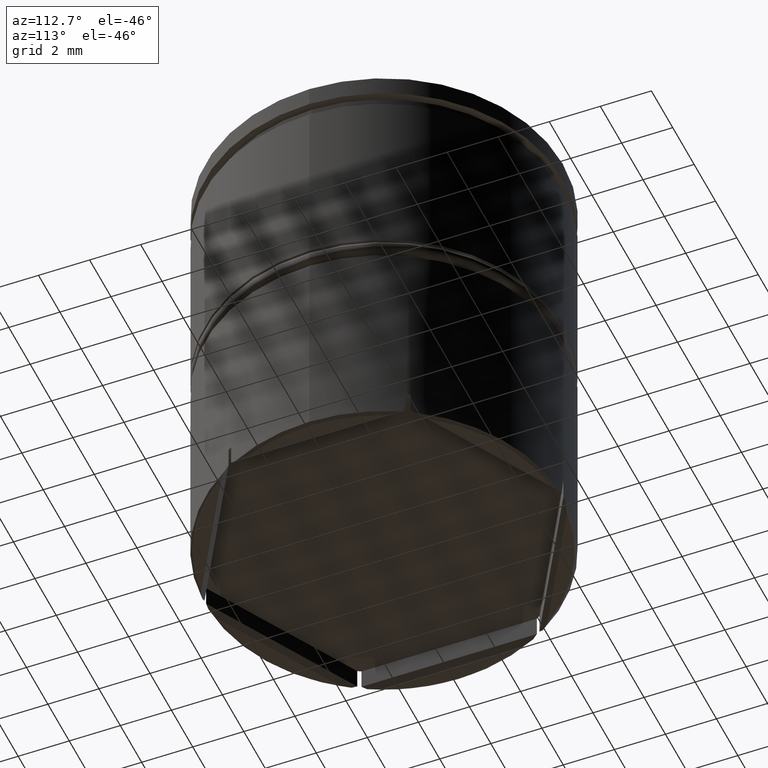
[diagram: clean part render]
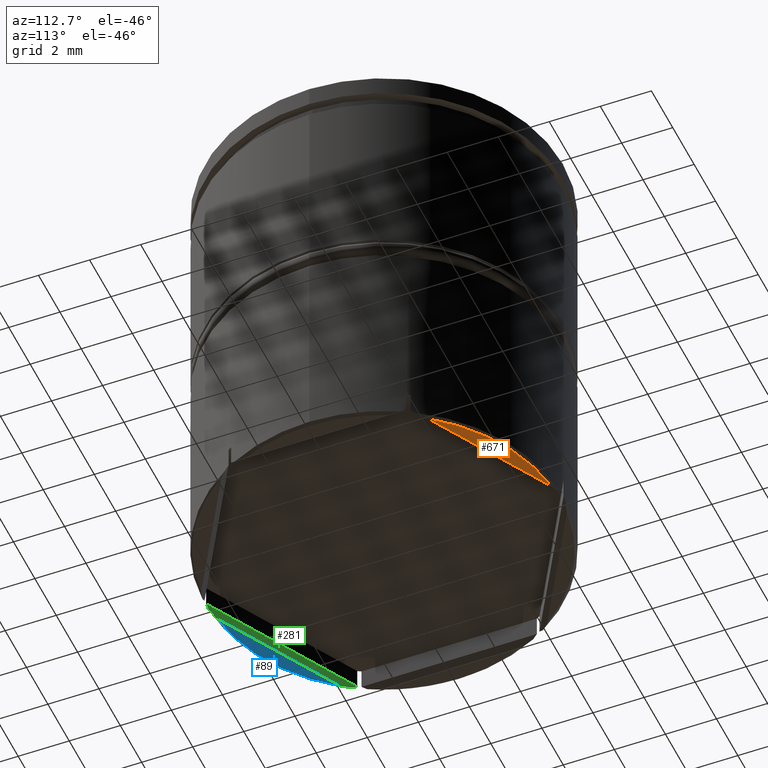
[diagram: same view with three faces highlighted in distinct colors, each labeled with its STEP entity id]
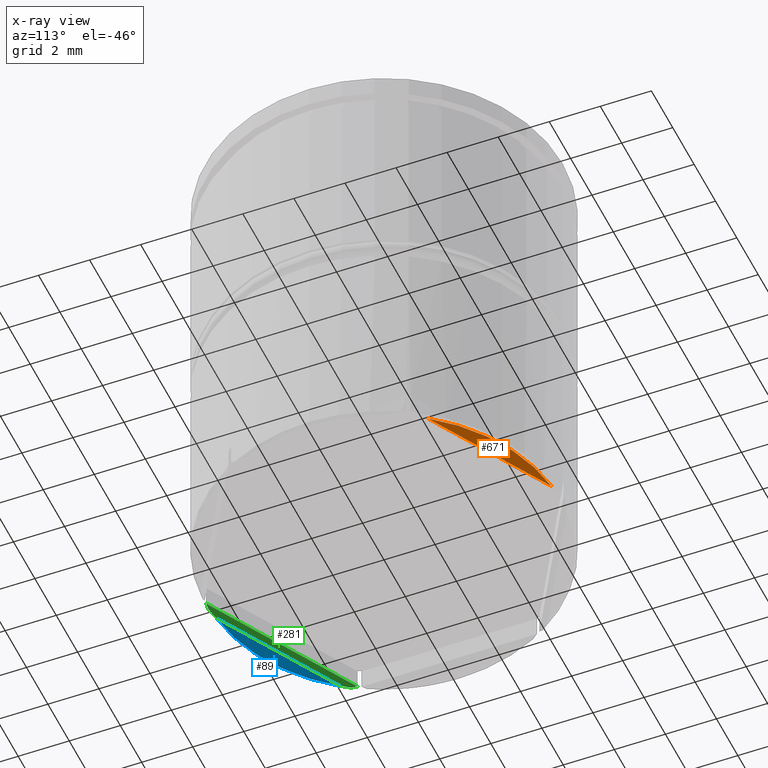
[diagram: x-ray of the same camera — body ghosted, the three highlighted faces saturated]
A machine part, auxiliary view with three faces highlighted in distinct colors.
The next image is the same camera in x-ray (body ghosted, the three faces saturated) — at least one of them is partly hidden behind the body in this view.
Their STEP definitions:

[orange] entity #671 — the highlighted planar face has unit normal (0, 0, -1).
#42 = DIRECTION ( 'NONE',  ( 0.000000000000000000, 0.000000000000000000, -1.000000000000000000 ) ) ;
#140 = DIRECTION ( 'NONE',  ( -1.000000000000000000, 0.000000000000000000, -0.000000000000000000 ) ) ;
#224 = EDGE_CURVE ( 'NONE', #723, #1312, #1499, .T. ) ;
#289 = CARTESIAN_POINT ( 'NONE',  ( 0.000000000000000000, 0.000000000000000000, -17.50000000000000000 ) ) ;
#294 = PLANE ( 'NONE',  #981 ) ;
#309 = CARTESIAN_POINT ( 'NONE',  ( 5.587211521390792690, 4.048835315894937281, -17.50000000000000000 ) ) ;
#447 = EDGE_CURVE ( 'NONE', #1312, #723, #472, .T. ) ;
#472 = LINE ( 'NONE', #481, #1107 ) ;
#481 = CARTESIAN_POINT ( 'NONE',  ( 0.3571519912462124413, 7.068411593501677359, -17.50000000000000000 ) ) ;
#505 = DIRECTION ( 'NONE',  ( 0.000000000000000000, 0.000000000000000000, -1.000000000000000000 ) ) ;
#598 = CARTESIAN_POINT ( 'NONE',  ( 0.7127884786092115732, 6.863084771788996896, -17.50000000000000000 ) ) ;
#606 = ORIENTED_EDGE ( 'NONE', *, *, #447, .T. ) ;
#636 = FACE_OUTER_BOUND ( 'NONE', #1170, .T. ) ;
#671 = ADVANCED_FACE ( 'NONE', ( #636 ), #294, .T. ) ;
#723 = VERTEX_POINT ( 'NONE', #598 ) ;
#774 = AXIS2_PLACEMENT_3D ( 'NONE', #289, #42, #1160 ) ;
#796 = CARTESIAN_POINT ( 'NONE',  ( 0.000000000000000000, 7.000000000000000888, -17.50000000000000000 ) ) ;
#976 = DIRECTION ( 'NONE',  ( -0.8660254037844385966, 0.5000000000000002220, 0.000000000000000000 ) ) ;
#981 = AXIS2_PLACEMENT_3D ( 'NONE', #796, #505, #140 ) ;
#1107 = VECTOR ( 'NONE', #976, 999.9999999999998863 ) ;
#1160 = DIRECTION ( 'NONE',  ( -1.000000000000000000, 0.000000000000000000, 0.000000000000000000 ) ) ;
#1170 = EDGE_LOOP ( 'NONE', ( #1527, #606 ) ) ;
#1312 = VERTEX_POINT ( 'NONE', #309 ) ;
#1499 = CIRCLE ( 'NONE', #774, 6.900000000000003908 ) ;
#1527 = ORIENTED_EDGE ( 'NONE', *, *, #224, .T. ) ;

[blue] entity #89 — the highlighted planar face has unit normal (0, 0, -1).
#89 = ADVANCED_FACE ( 'NONE', ( #1458 ), #836, .T. ) ;
#205 = DIRECTION ( 'NONE',  ( -1.000000000000000000, 0.000000000000000000, 0.000000000000000000 ) ) ;
#210 = CARTESIAN_POINT ( 'NONE',  ( -5.587211521390797131, -4.048835315894931064, -17.50000000000000000 ) ) ;
#211 = ORIENTED_EDGE ( 'NONE', *, *, #1141, .T. ) ;
#332 = EDGE_CURVE ( 'NONE', #1098, #1470, #984, .T. ) ;
#587 = CARTESIAN_POINT ( 'NONE',  ( 0.000000000000000000, 0.000000000000000000, -17.50000000000000000 ) ) ;
#637 = CARTESIAN_POINT ( 'NONE',  ( -0.3571519912462118862, -7.068411593501673806, -17.50000000000000000 ) ) ;
#666 = AXIS2_PLACEMENT_3D ( 'NONE', #587, #1071, #205 ) ;
#708 = EDGE_LOOP ( 'NONE', ( #1547, #211 ) ) ;
#754 = DIRECTION ( 'NONE',  ( 0.8660254037844385966, -0.5000000000000001110, 0.000000000000000000 ) ) ;
#836 = PLANE ( 'NONE',  #1217 ) ;
#855 = CARTESIAN_POINT ( 'NONE',  ( -0.7127884786092052449, -6.863084771788998673, -17.50000000000000000 ) ) ;
#898 = LINE ( 'NONE', #637, #1324 ) ;
#984 = CIRCLE ( 'NONE', #666, 6.900000000000003908 ) ;
#1009 = DIRECTION ( 'NONE',  ( 0.000000000000000000, 0.000000000000000000, -1.000000000000000000 ) ) ;
#1071 = DIRECTION ( 'NONE',  ( 0.000000000000000000, 0.000000000000000000, -1.000000000000000000 ) ) ;
#1096 = DIRECTION ( 'NONE',  ( -1.000000000000000000, 0.000000000000000000, -0.000000000000000000 ) ) ;
#1098 = VERTEX_POINT ( 'NONE', #855 ) ;
#1141 = EDGE_CURVE ( 'NONE', #1470, #1098, #898, .T. ) ;
#1212 = CARTESIAN_POINT ( 'NONE',  ( 0.000000000000000000, 7.000000000000000888, -17.50000000000000000 ) ) ;
#1217 = AXIS2_PLACEMENT_3D ( 'NONE', #1212, #1009, #1096 ) ;
#1324 = VECTOR ( 'NONE', #754, 1000.000000000000114 ) ;
#1458 = FACE_OUTER_BOUND ( 'NONE', #708, .T. ) ;
#1470 = VERTEX_POINT ( 'NONE', #210 ) ;
#1547 = ORIENTED_EDGE ( 'NONE', *, *, #332, .T. ) ;

[green] entity #281 — the highlighted planar face has unit normal (0.3536, 0.6124, -0.7071).
#7 = CARTESIAN_POINT ( 'NONE',  ( -0.2857505441059412510, -6.994165184390713108, -17.39999999999999858 ) ) ;
#69 = EDGE_CURVE ( 'NONE', #1098, #256, #1186, .T. ) ;
#91 = CARTESIAN_POINT ( 'NONE',  ( -0.7127884786092052449, -6.863084771788998673, -17.50000000000000000 ) ) ;
#112 = CARTESIAN_POINT ( 'NONE',  ( -6.023634140239850332, -3.565926491746141735, -17.30000000000000071 ) ) ;
#128 = ORIENTED_EDGE ( 'NONE', *, *, #1570, .F. ) ;
#148 = ORIENTED_EDGE ( 'NONE', *, *, #1141, .F. ) ;
#154 = EDGE_CURVE ( 'NONE', #334, #318, #1398, .T. ) ;
#185 = B_SPLINE_CURVE_WITH_KNOTS ( 'NONE', 3,
 ( #1019, #1106, #485, #1609 ),
 .UNSPECIFIED., .F., .F.,
 ( 4, 4 ),
 ( 0.000000000000000000, 0.0004577591856780710827 ),
 .UNSPECIFIED. ) ;
#210 = CARTESIAN_POINT ( 'NONE',  ( -5.587211521390797131, -4.048835315894931064, -17.50000000000000000 ) ) ;
#218 = CARTESIAN_POINT ( 'NONE',  ( -0.2857505441059412510, -6.994165184390713108, -17.39999999999999858 ) ) ;
#256 = VERTEX_POINT ( 'NONE', #7 ) ;
#281 = ADVANCED_FACE ( 'NONE', ( #681 ), #577, .T. ) ;
#318 = VERTEX_POINT ( 'NONE', #948 ) ;
#320 = EDGE_LOOP ( 'NONE', ( #919, #148, #564, #128, #1520, #1422 ) ) ;
#331 = CARTESIAN_POINT ( 'NONE',  ( 4.363473247675550039E-16, -7.043673284113437738, -17.30000000000000071 ) ) ;
#334 = VERTEX_POINT ( 'NONE', #1572 ) ;
#382 = CARTESIAN_POINT ( 'NONE',  ( -5.951600521272996325, -3.685556477925193697, -17.36758579760201471 ) ) ;
#457 = DIRECTION ( 'NONE',  ( 0.8660254037844385966, -0.5000000000000001110, 0.000000000000000000 ) ) ;
#485 = CARTESIAN_POINT ( 'NONE',  ( -5.698156192910427187, -3.948816421667537657, -17.46885343250046674 ) ) ;
#507 = VECTOR ( 'NONE', #1294, 1000.000000000000114 ) ;
#564 = ORIENTED_EDGE ( 'NONE', *, *, #907, .F. ) ;
#577 = PLANE ( 'NONE',  #1344 ) ;
#637 = CARTESIAN_POINT ( 'NONE',  ( -0.3571519912462118862, -7.068411593501673806, -17.50000000000000000 ) ) ;
#681 = FACE_OUTER_BOUND ( 'NONE', #320, .T. ) ;
#730 =( BOUNDED_CURVE ( )  B_SPLINE_CURVE ( 3, ( #112, #1393, #382, #1376 ),
 .UNSPECIFIED., .F., .T. ) 
 B_SPLINE_CURVE_WITH_KNOTS ( ( 4, 4 ),
 ( 2.628903502937813830, 2.658826730264059357 ),
 .UNSPECIFIED. ) 
 CURVE ( )  GEOMETRIC_REPRESENTATION_ITEM ( )  RATIONAL_B_SPLINE_CURVE ( ( 1.000000000000000000, 0.9999253847640983128, 0.9999253847640983128, 1.000000000000000000 ) ) 
 REPRESENTATION_ITEM ( '' )  );
#754 = DIRECTION ( 'NONE',  ( 0.8660254037844385966, -0.5000000000000001110, 0.000000000000000000 ) ) ;
#807 = DIRECTION ( 'NONE',  ( 0.3535533905932776721, 0.6123724356958011317, -0.7071067811865398012 ) ) ;
#855 = CARTESIAN_POINT ( 'NONE',  ( -0.7127884786092052449, -6.863084771788998673, -17.50000000000000000 ) ) ;
#856 = CARTESIAN_POINT ( 'NONE',  ( -0.5706972395900390405, -6.909156228625821683, -17.46885343250046674 ) ) ;
#898 = LINE ( 'NONE', #637, #1324 ) ;
#907 = EDGE_CURVE ( 'NONE', #1233, #1470, #185, .T. ) ;
#919 = ORIENTED_EDGE ( 'NONE', *, *, #69, .F. ) ;
#948 = CARTESIAN_POINT ( 'NONE',  ( -6.023634140239850332, -3.565926491746141735, -17.30000000000000071 ) ) ;
#970 = CARTESIAN_POINT ( 'NONE',  ( -0.4282848945887998138, -6.952836652010356389, -17.43547561629891263 ) ) ;
#1019 = CARTESIAN_POINT ( 'NONE',  ( -5.914249455894059260, -3.744549822536325401, -17.39999999999999858 ) ) ;
#1036 = CARTESIAN_POINT ( 'NONE',  ( -5.842848008753790623, -3.670303413425367367, -17.30000000000000071 ) ) ;
#1055 =( BOUNDED_CURVE ( )  B_SPLINE_CURVE ( 3, ( #1440, #1454, #1571, #1225 ),
 .UNSPECIFIED., .F., .T. ) 
 B_SPLINE_CURVE_WITH_KNOTS ( ( 4, 4 ),
 ( 3.624358576915527319, 3.654281804241773290 ),
 .UNSPECIFIED. ) 
 CURVE ( )  GEOMETRIC_REPRESENTATION_ITEM ( )  RATIONAL_B_SPLINE_CURVE ( ( 1.000000000000000000, 0.9999253847640983128, 0.9999253847640983128, 1.000000000000000000 ) ) 
 REPRESENTATION_ITEM ( '' )  );
#1098 = VERTEX_POINT ( 'NONE', #855 ) ;
#1106 = CARTESIAN_POINT ( 'NONE',  ( -5.807190721710114190, -3.847323924776218096, -17.43547561629891263 ) ) ;
#1141 = EDGE_CURVE ( 'NONE', #1470, #1098, #898, .T. ) ;
#1186 = B_SPLINE_CURVE_WITH_KNOTS ( 'NONE', 3,
 ( #91, #856, #970, #218 ),
 .UNSPECIFIED., .F., .F.,
 ( 4, 4 ),
 ( 3.252606517456513302E-19, 0.0004577591856780709200 ),
 .UNSPECIFIED. ) ;
#1225 = CARTESIAN_POINT ( 'NONE',  ( -0.07636585976015554389, -6.999583434424017092, -17.30000000000000071 ) ) ;
#1233 = VERTEX_POINT ( 'NONE', #1275 ) ;
#1275 = CARTESIAN_POINT ( 'NONE',  ( -5.914249455894059260, -3.744549822536325401, -17.39999999999999858 ) ) ;
#1294 = DIRECTION ( 'NONE',  ( -0.8660254037844385966, 0.5000000000000001110, 0.000000000000000000 ) ) ;
#1324 = VECTOR ( 'NONE', #754, 1000.000000000000114 ) ;
#1344 = AXIS2_PLACEMENT_3D ( 'NONE', #331, #807, #457 ) ;
#1376 = CARTESIAN_POINT ( 'NONE',  ( -5.914249455894059260, -3.744549822536325401, -17.39999999999999858 ) ) ;
#1393 = CARTESIAN_POINT ( 'NONE',  ( -5.988064803512614276, -3.626010924656295042, -17.33424997690855918 ) ) ;
#1398 = LINE ( 'NONE', #1036, #507 ) ;
#1422 = ORIENTED_EDGE ( 'NONE', *, *, #1480, .F. ) ;
#1440 = CARTESIAN_POINT ( 'NONE',  ( -0.2857505441059412510, -6.994165184390713108, -17.39999999999999858 ) ) ;
#1454 = CARTESIAN_POINT ( 'NONE',  ( -0.2159852763290208699, -6.997015483561718874, -17.36758579760201471 ) ) ;
#1470 = VERTEX_POINT ( 'NONE', #210 ) ;
#1480 = EDGE_CURVE ( 'NONE', #256, #334, #1055, .T. ) ;
#1520 = ORIENTED_EDGE ( 'NONE', *, *, #154, .F. ) ;
#1570 = EDGE_CURVE ( 'NONE', #318, #1233, #730, .T. ) ;
#1571 = CARTESIAN_POINT ( 'NONE',  ( -0.1461851733959461941, -6.998821701677545803, -17.33424997690855562 ) ) ;
#1572 = CARTESIAN_POINT ( 'NONE',  ( -0.07636585976015554389, -6.999583434424017092, -17.30000000000000071 ) ) ;
#1609 = CARTESIAN_POINT ( 'NONE',  ( -5.587211521390797131, -4.048835315894931064, -17.50000000000000000 ) ) ;